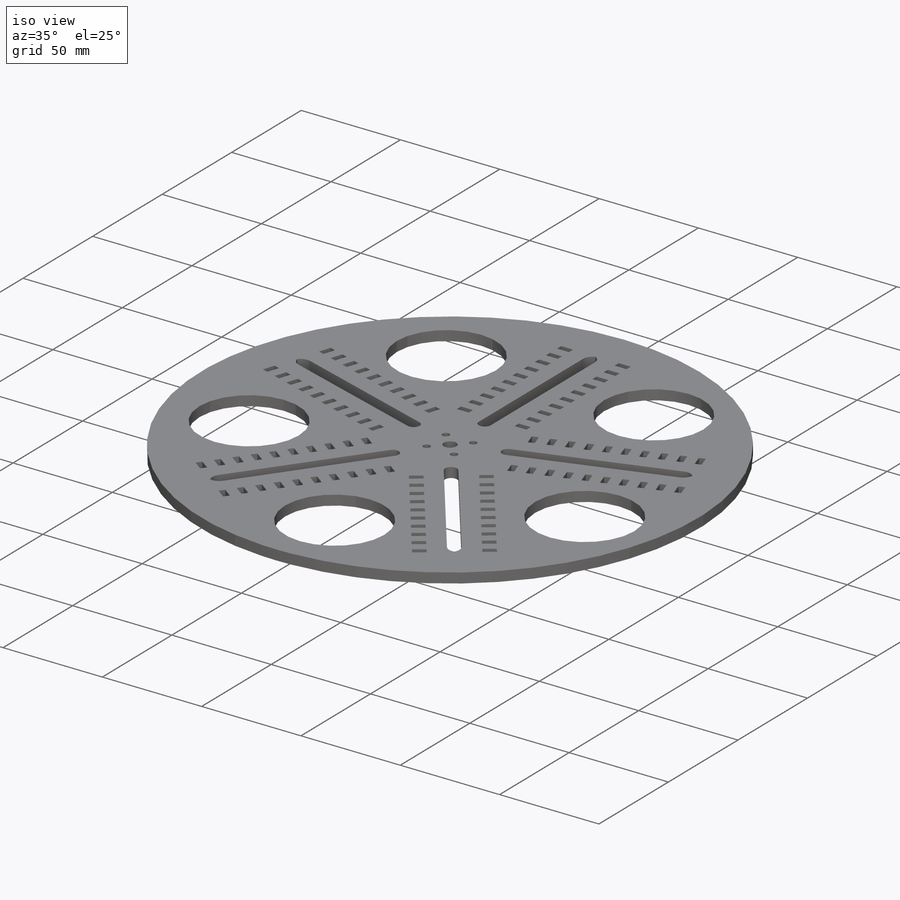
[diagram: iso view]
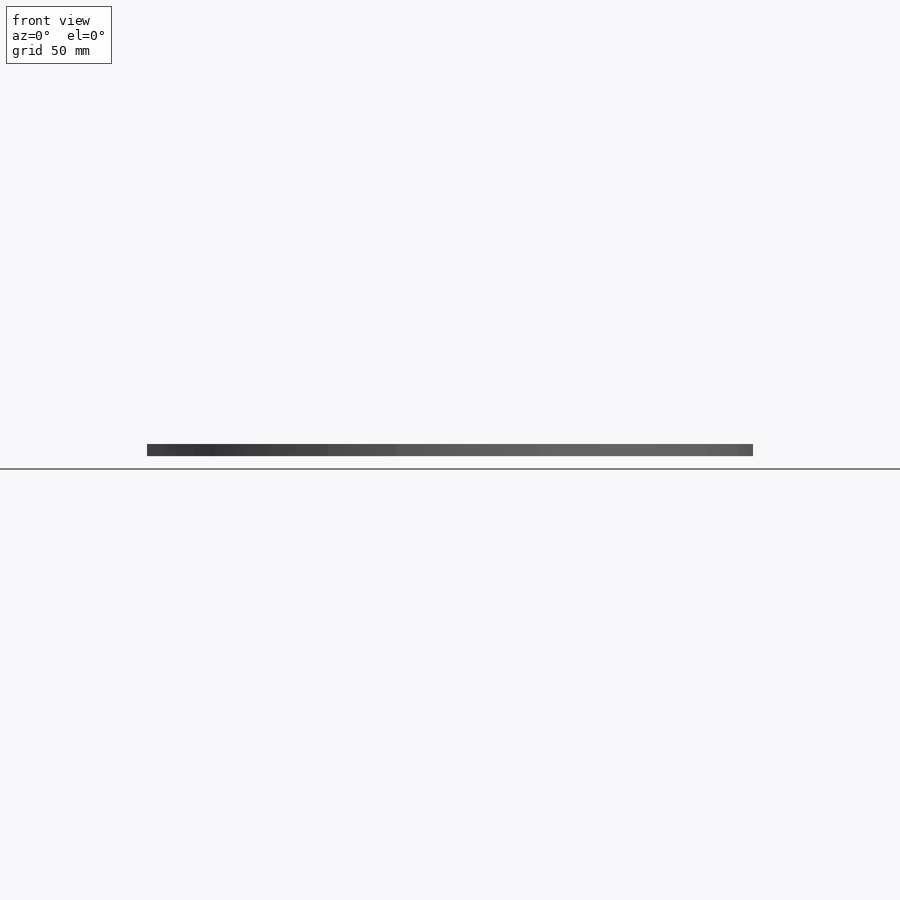
[diagram: front view]
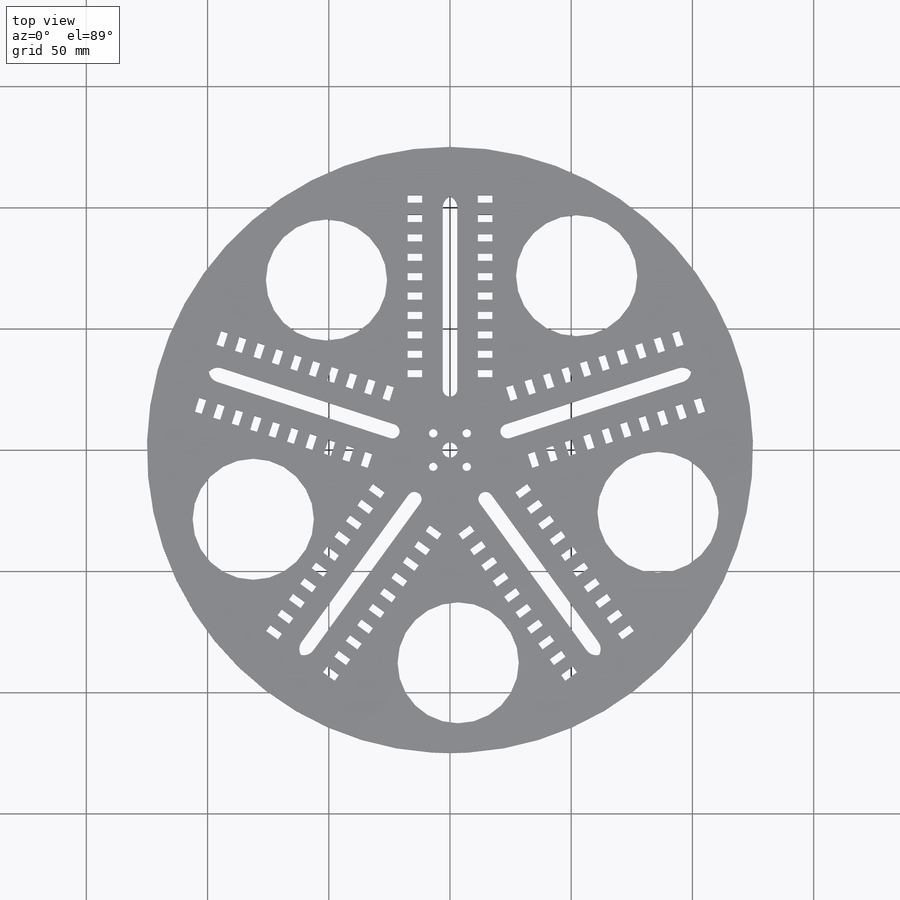
[diagram: top view]
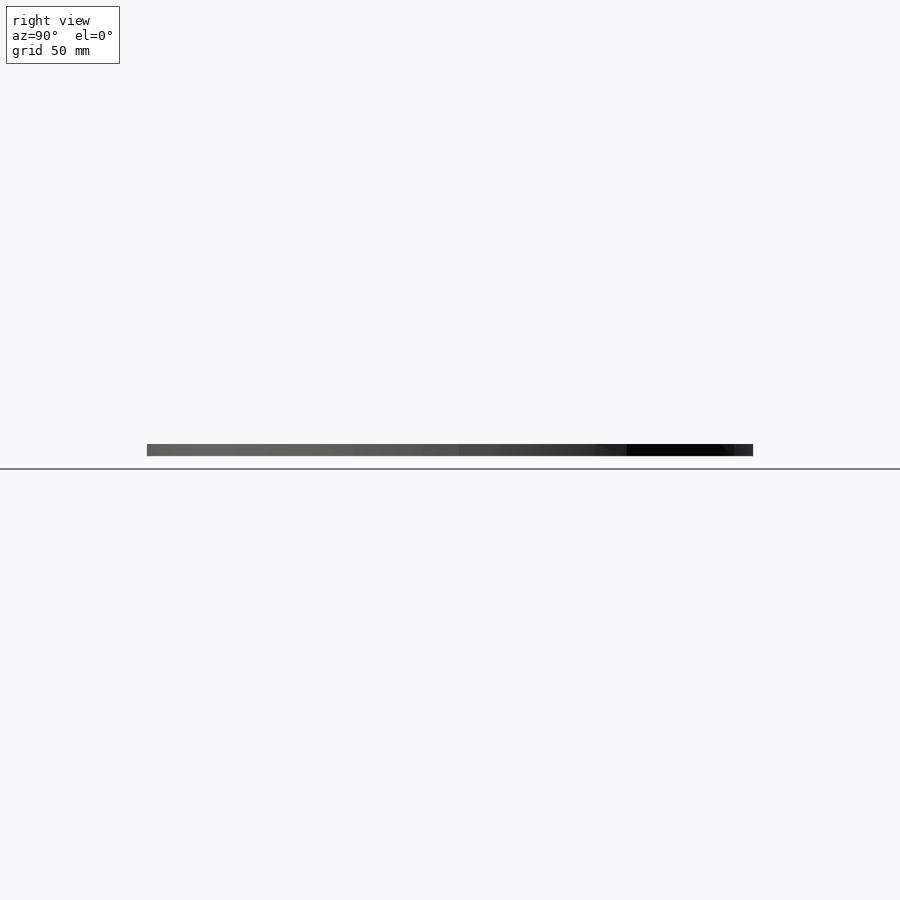
[diagram: right view]
SOLIDWORKS PART (.sldprt)
format: sldprt  version: not decoded by parser v0  size: 781,824 bytes
history: native  units: mm
features: sketch x7, cut_extrude x6, plane x3, material x1, extrude x1, fillet x1 (+8 scaffold rows collapsed)
feature tree (27):
  scaffold x8  (default folders/planes/origin — collapsed)
  material  "PVC rígido"
  plane  "Alzado"
  plane  "Planta"
  plane  "Vista lateral"
  sketch  "Croquis1"  dims[D1=250.0mm]
  extrude  "Saliente-Extruir1"  Depth=5mm
  sketch  "Croquis2"  dims[D1=6.3mm]
  cut_extrude  "Cortar-Extruir1"  [1 undecoded]
  sketch  "Croquis3"  dims[D1=210.0mm D3=3.0mm D2=80.0mm D4=5.0]
  cut_extrude  "Cortar-Extruir2"  [1 undecoded]
  sketch  "Croquis5"  dims[D1=20.0mm D2=6.0mm D3=3.0mm D4=11.5mm D5=6.0mm D6=3.0mm D7=11.5mm D8=5.0]
  cut_extrude  "Cortar-Extruir3"  [1 undecoded]
  sketch  "Croquis7"  dims[D1=50.0mm D2=5.0]
  cut_extrude  "Cortar-Extruir4"  Depth=10mm
  fillet  "Redondeo1"  Radius=5mm
  sketch  "Croquis8"  dims[D3=3.5mm D4=3.5mm D5=3.5mm D6=3.5mm D1=13.83mm D2=13.83mm]
  cut_extrude  "Cortar-Extruir5"  [1 undecoded]
  sketch  "Croquis9"  dims[c1.D1=6.0mm c1.D2=3.0mm c1.D3=6.0mm c1.D4=3.0mm c1.D5=11.5mm c1.D6=11.5mm c1.D7=5.0mm c1.D8=5.0mm c2.D6=11.5mm c2.D9=9.0 c2.D10=5.0 c2.D11=5.0 c2.D12=5.0 c2.D13=5.0 c2.D14=5.0 c2.D15=5.0 c2.D16=5.0 c2.D17=5.0 c2.D18=5.0]
  cut_extrude  "Cortar-Extruir6"  [1 undecoded]
decode coverage: 10 of 15 modeling features carry decoded parameters
note: 5 parameter values undecoded
summary: no parameter record found for 5 features
note: suppression state not decoded; provenance and decode notes live in map.json
